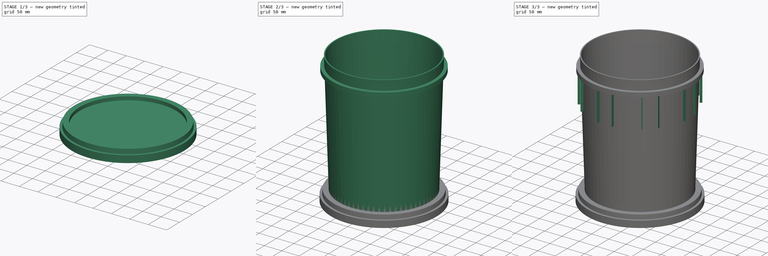
[diagram: build sequence overview — one tinted view per stage of 3, left to right]
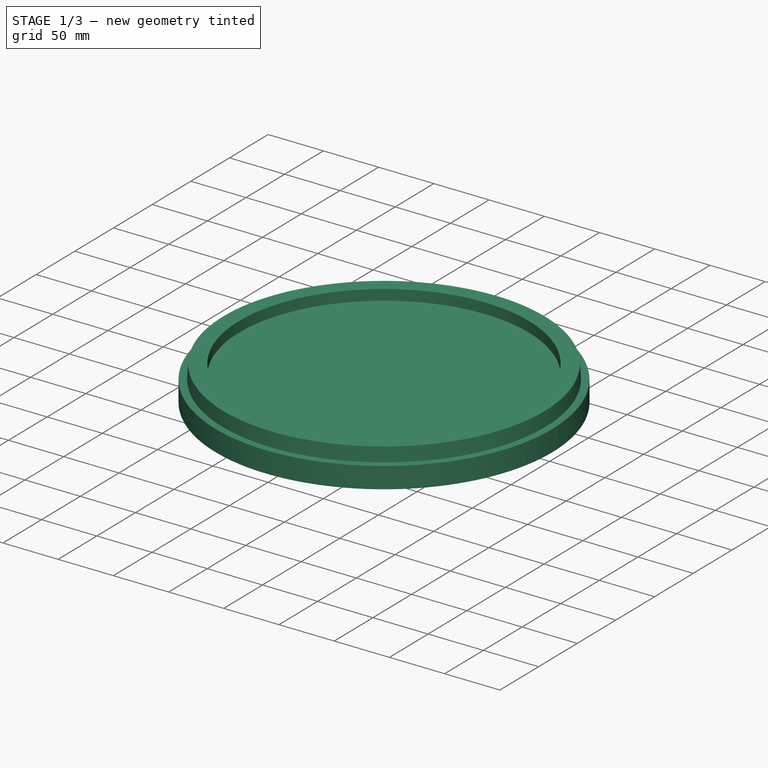
[diagram: stage 1 of 3 — iso view after this stage's code; geometry added in this stage tinted green]
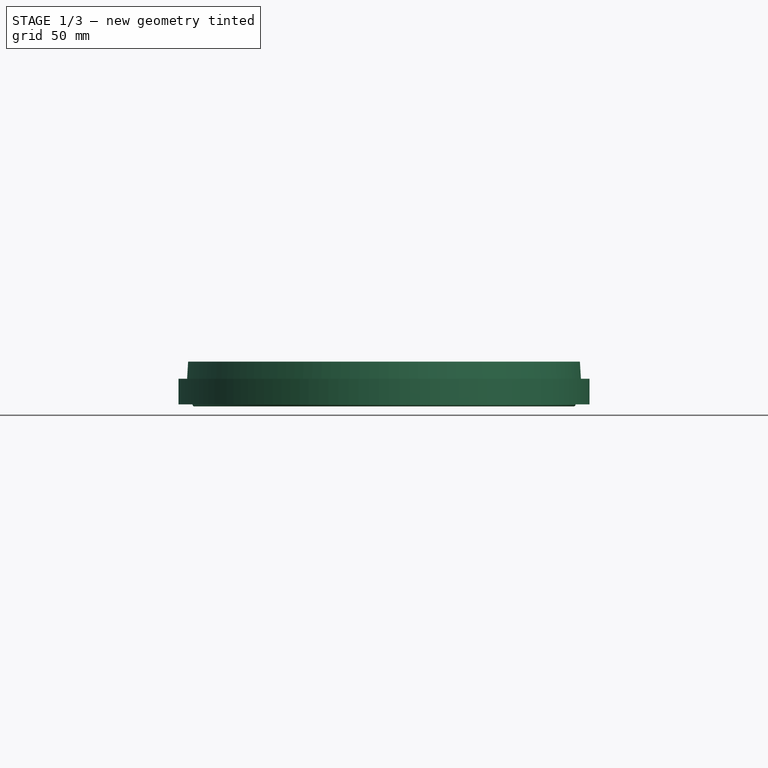
[diagram: stage 1 of 3 — front view after this stage's code; geometry added in this stage tinted green]
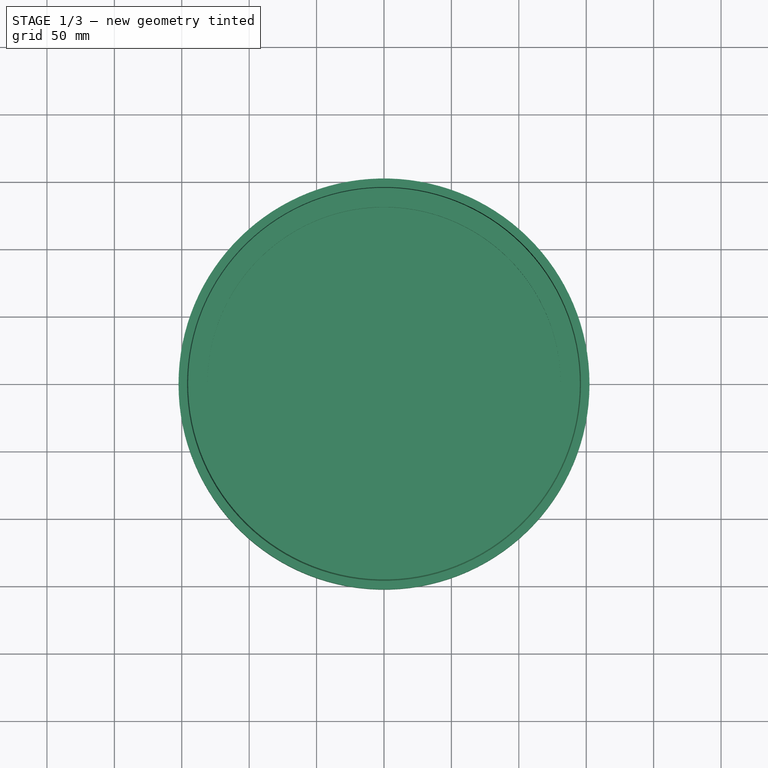
[diagram: stage 1 of 3 — top view after this stage's code; geometry added in this stage tinted green]
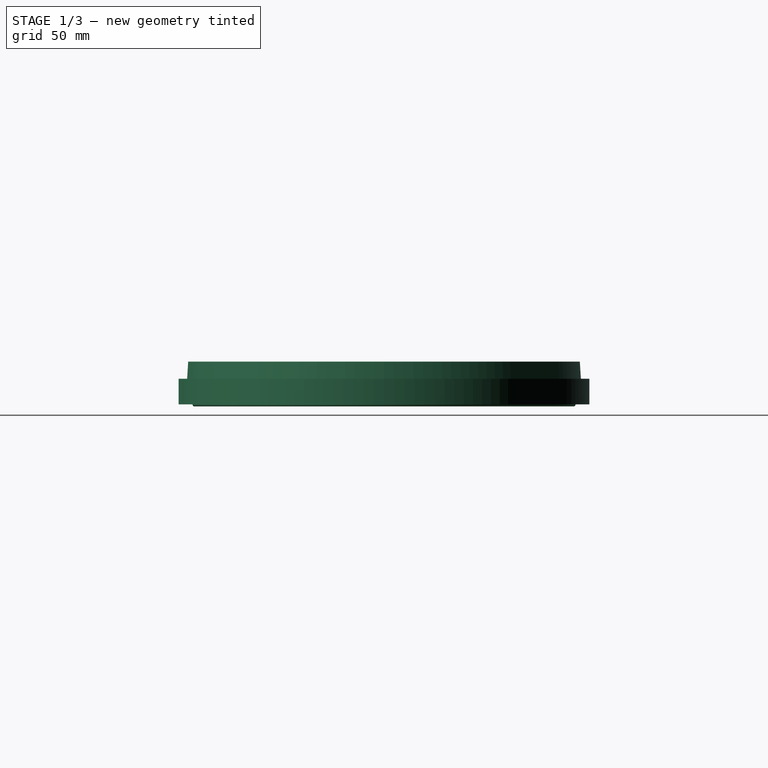
[diagram: stage 1 of 3 — right view after this stage's code; geometry added in this stage tinted green]
FCSTD DOCUMENT  (FreeCAD 0.20RUnknown)
Label: slow-sand-filter
License: All rights reserved
LicenseURL: http://en.wikipedia.org/wiki/All_rights_reserved
objects: Sketcher::SketchObject×4, PartDesign::Revolution×3, PartDesign::Body×3, PartDesign::Pad×1, PartDesign::PolarPattern×1, App::Part×1
note: 16 computed .brp shape members not serialized (recipe doc carries the construction recipe); baked Part::Feature solids carry a one-line shape summary decoded from their .brp

FEATURE [PartDesign::Body] Body001  label="bucket"
  Group = -> [Sketch005,Revolution,Sketch,Pad,PolarPattern]
  Origin = -> Origin002
  Tip = -> PolarPattern
FEATURE [Sketcher::SketchObject] Sketch006
  FullyConstrained = true
  MapMode = 5
  Placement = pos=(0,0,0) rot=(1,0,0;1.5708rad)
  Support = -> [XZ_Plane003]
  sketch-geometry (19):
    g0: LineSegment StartX=-152.4 StartY=0 StartZ=0 EndX=-152.4 EndY=19.05 EndZ=0
    g1: LineSegment StartX=-152.4 StartY=19.05 StartZ=0 EndX=-146.05 EndY=19.05 EndZ=0
    g2: LineSegment StartX=-146.05 StartY=19.05 StartZ=0 EndX=-145.288 EndY=31.75 EndZ=0
    g3: LineSegment StartX=-145.288 StartY=31.75 StartZ=0 EndX=-131.001 EndY=31.75 EndZ=0
    g4: LineSegment StartX=-131.001 StartY=31.75 StartZ=0 EndX=-131.001 EndY=22.225 EndZ=0
    g5: LineSegment StartX=-131.001 StartY=22.225 StartZ=0 EndX=0 EndY=22.225 EndZ=0
    g6: LineSegment StartX=-152.4 StartY=0 StartZ=0 EndX=-149.225 EndY=0 EndZ=0
    g7: LineSegment StartX=-149.225 StartY=0 StartZ=0 EndX=-149.225 EndY=15.875 EndZ=0
    g8: LineSegment StartX=-149.225 StartY=15.875 StartZ=0 EndX=-143.06 EndY=15.875 EndZ=0
    g9: LineSegment StartX=-143.06 StartY=15.875 StartZ=0 EndX=-142.298 EndY=28.575 EndZ=0
    g10: LineSegment StartX=0 StartY=19.05 StartZ=0 EndX=0 EndY=22.225 EndZ=0
    g11: LineSegment StartX=-142.298 StartY=28.575 StartZ=0 EndX=-145.467 EndY=28.7652 EndZ=0
    g12: LineSegment StartX=-134.175 StartY=28.575 StartZ=0 EndX=-134.175 EndY=19.05 EndZ=0
    g13: LineSegment StartX=-134.175 StartY=19.05 StartZ=0 EndX=0 EndY=19.05 EndZ=0
    g14: LineSegment StartX=-142.298 StartY=28.575 StartZ=0 EndX=-138.869 EndY=28.575 EndZ=0
    g15: LineSegment StartX=-138.869 StartY=28.575 StartZ=0 EndX=-138.869 EndY=26.035 EndZ=0
    g16: LineSegment StartX=-138.869 StartY=26.035 StartZ=0 EndX=-135.694 EndY=26.035 EndZ=0
    g17: LineSegment StartX=-135.694 StartY=26.035 StartZ=0 EndX=-135.694 EndY=28.575 EndZ=0
    g18: LineSegment StartX=-135.694 StartY=28.575 StartZ=0 EndX=-134.175 EndY=28.575 EndZ=0
  constraints (57):
    c: PointOnObject(g0,g-1)
    c: Vertical(g0)
    c: DistanceY(g0,g0) = 19.05
    c: DistanceX(g0,g-1) = 152.4
    c: Coincident(g1,g0)
    c: Horizontal(g1)
    c: DistanceX(g1,g1) = 6.35
    c: Coincident(g2,g1)
    c: DistanceY(g1,g2) = 12.7
    c: DistanceX(g2,g-1) = 145.288
    c: Coincident(g3,g2)
    c: Horizontal(g3)
    c: DistanceX(g3,g3) = 14.2875
    c: Coincident(g4,g3)
    c: Vertical(g4)
    c: DistanceY(g4,g4) = 9.525
    c: Coincident(g5,g4)
    c: PointOnObject(g5,g-2)
    c: Horizontal(g5)
    c: Coincident(g6,g0)
    c: PointOnObject(g6,g-1)
    c: Coincident(g7,g6)
    c: Vertical(g7)
    c: Coincident(g8,g7)
    c: Horizontal(g8)
    c: Coincident(g9,g8)
    c: PointOnObject(g10,g-2)
    c: Coincident(g10,g5)
    c: DistanceY(g10,g10) = 3.175
    c: DistanceY(g7,g0) = 3.175
    c: DistanceX(g6,g6) = 3.175
    c: Parallel(g2,g9)
    c: DistanceY(g9,g2) = 3.175
    c: Coincident(g11,g9)
    c: PointOnObject(g11,g2)
    c: Perpendicular(g11,g2)
    c: Distance(g11) = 3.175
    c: Vertical(g12)
    c: Coincident(g13,g12)
    c: Coincident(g13,g10)
    c: Horizontal(g13)
    c: DistanceX(g12,g3) = 3.175
    c: Coincident(g14,g9)
    c: Horizontal(g14)
    c: Coincident(g15,g14)
    c: Vertical(g15)
    c: Coincident(g16,g15)
    c: Horizontal(g16)
    c: Coincident(g17,g16)
    c: Vertical(g17)
    c: Coincident(g18,g17)
    c: Coincident(g18,g12)
    c: Horizontal(g18)
    c: DistanceX(g14,g14) = 3.429
    c: DistanceX(g16,g16) = 3.175
    c: DistanceY(g15,g15) = 2.54
    c: Equal(g15,g17)
FEATURE [PartDesign::Revolution] Revolution001
  Angle = 360
  Axis = (0,2e-16,1)
  Base = (0,0,0)
  Placement = pos=(0,0,0) rot=(1,0,0;1.5708rad)
  Profile = -> Sketch006
  ReferenceAxis = -> Sketch006 [V_Axis]
FEATURE [PartDesign::Body] Body  label="lid"
  Group = -> [Sketch006,Revolution001]
  Origin = -> Origin003
  Placement = pos=(0,0,355.6) rot=(0,0,1;0rad)
  Tip = -> Revolution001
FEATURE [Sketcher::SketchObject] Sketch007
  FullyConstrained = true
  MapMode = 5
  Placement = pos=(0,0,0) rot=(1,0,0;1.5708rad)
  Support = -> [XZ_Plane004]
  sketch-geometry (1):
    g0: Circle CenterX=-140.557 CenterY=0 CenterZ=0 NormalX=0 NormalY=0 NormalZ=1 AngleXU=0 Radius=1.524
  constraints (3):
    c: PointOnObject(g0,g-1)
    c: Diameter(g0) = 3.048
    c: DistanceX(g0,g-1) = 140.557
FEATURE [PartDesign::Revolution] Revolution002
  Angle = 360
  Axis = (0,2e-16,1)
  Base = (0,0,0)
  Placement = pos=(0,0,0) rot=(1,0,0;1.5708rad)
  Profile = -> Sketch007
  ReferenceAxis = -> Sketch007 [V_Axis]
FEATURE [PartDesign::Body] Body002  label="oring"
  Group = -> [Sketch007,Revolution002]
  Origin = -> Origin004
  Placement = pos=(0,0,382.524) rot=(0,0,1;0rad)
  Tip = -> Revolution002
FEATURE [App::Part] Part  label="pail-5-gal"
  Group = -> [Body001,Body,Body002]
  Origin = -> Origin
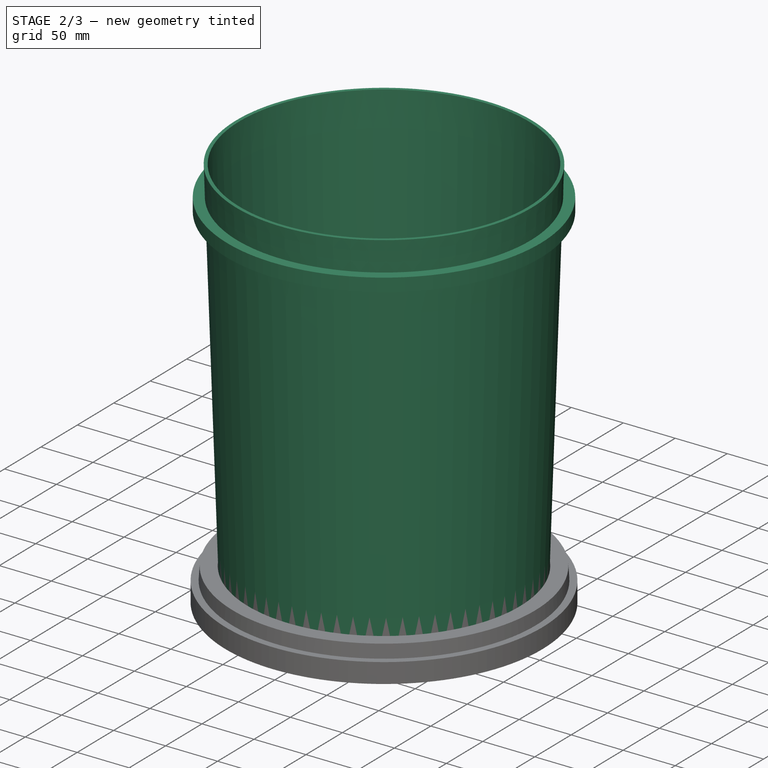
[diagram: stage 2 of 3 — iso view after this stage's code; geometry added in this stage tinted green]
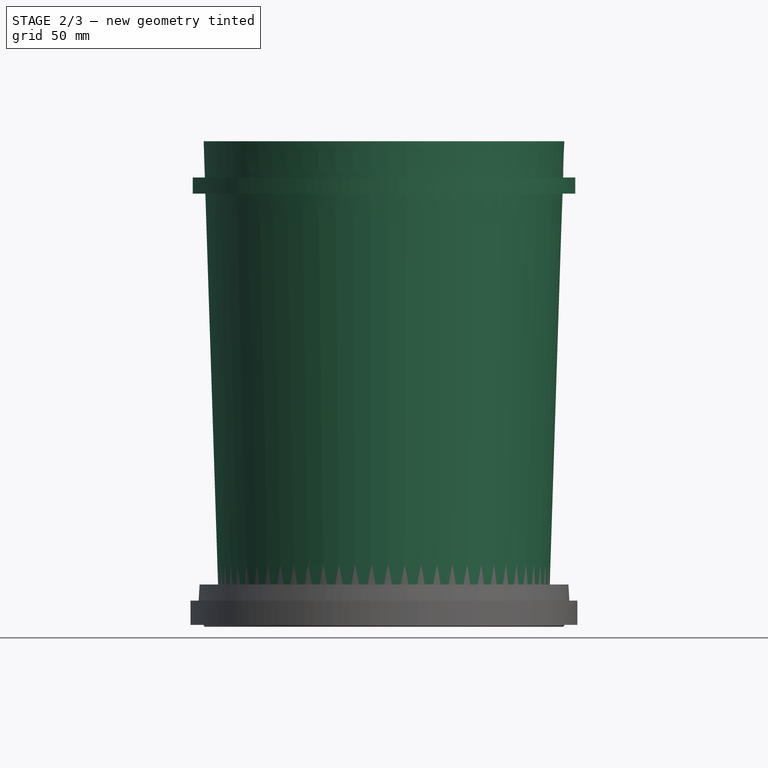
[diagram: stage 2 of 3 — front view after this stage's code; geometry added in this stage tinted green]
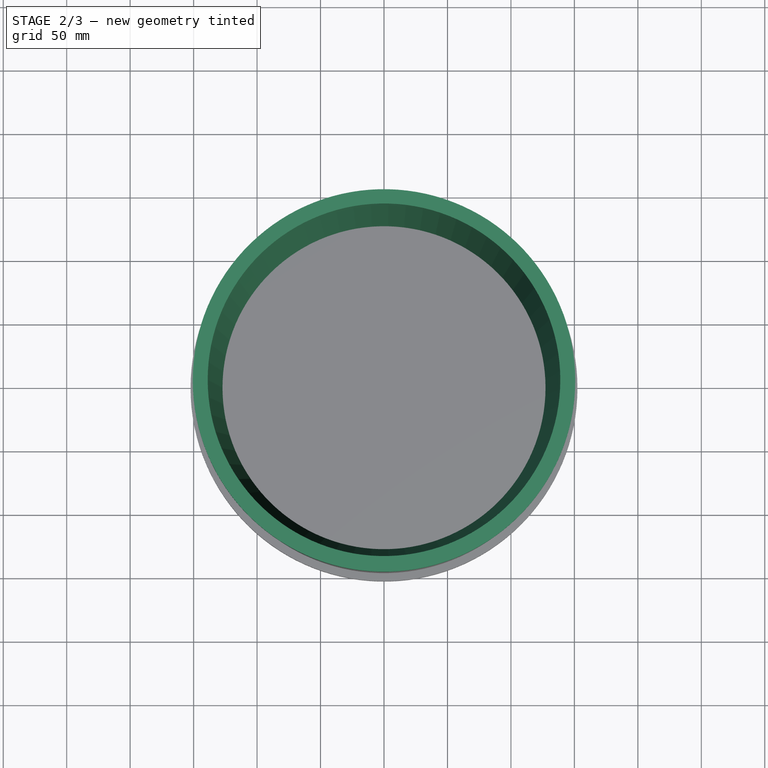
[diagram: stage 2 of 3 — top view after this stage's code; geometry added in this stage tinted green]
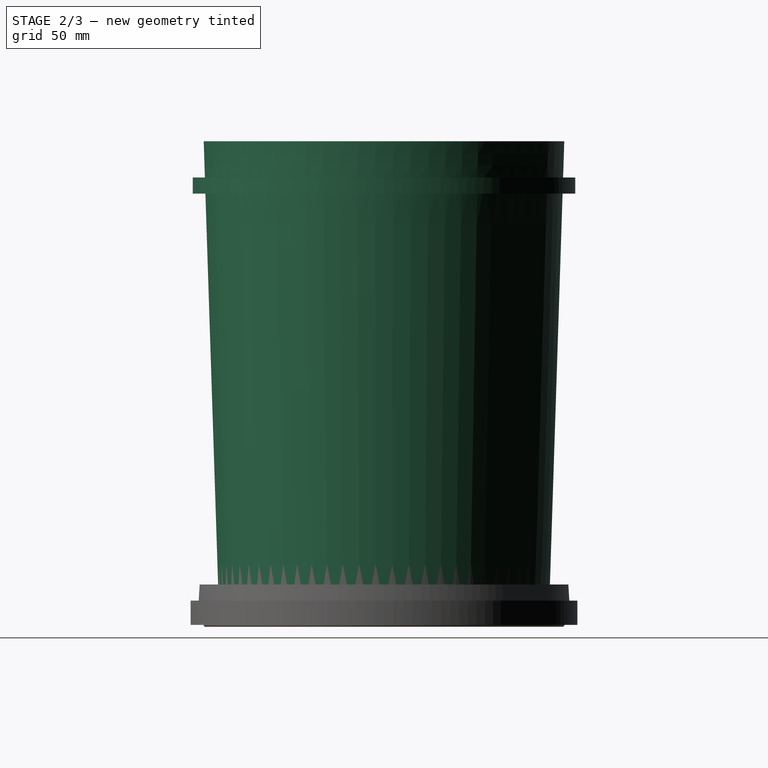
[diagram: stage 2 of 3 — right view after this stage's code; geometry added in this stage tinted green]
FEATURE [Sketcher::SketchObject] Sketch005
  FullyConstrained = true
  MapMode = 5
  Placement = pos=(0,0,0) rot=(1,0,0;1.5708rad)
  Support = -> [XZ_Plane002]
  sketch-geometry (26):
    g0: LineSegment StartX=-128.588 StartY=0 StartZ=0 EndX=-128.588 EndY=12.7 EndZ=0
    g1: LineSegment StartX=-128.588 StartY=12.7 StartZ=0 EndX=-130.175 EndY=14.2875 EndZ=0
    g2: LineSegment StartX=-130.175 StartY=14.2875 StartZ=0 EndX=-141.051 EndY=349.265 EndZ=0
    g3: LineSegment StartX=-141.051 StartY=349.265 StartZ=0 EndX=-147.504 EndY=349.265 EndZ=0
    g4: LineSegment StartX=-147.504 StartY=349.265 StartZ=0 EndX=-147.504 EndY=339.74 EndZ=0
    g5: LineSegment StartX=-147.504 StartY=339.74 StartZ=0 EndX=-150.679 EndY=339.74 EndZ=0
    g6: LineSegment StartX=-150.679 StartY=339.74 StartZ=0 EndX=-150.679 EndY=352.44 EndZ=0
    g7: LineSegment StartX=-150.679 StartY=352.44 StartZ=0 EndX=-141.154 EndY=352.44 EndZ=0
    g8: LineSegment StartX=-141.154 StartY=352.44 StartZ=0 EndX=-142.081 EndY=381 EndZ=0
    g9: LineSegment StartX=-142.081 StartY=381 StartZ=0 EndX=-138.905 EndY=381 EndZ=0
    g10: LineSegment StartX=-138.905 StartY=381 StartZ=0 EndX=-127.05 EndY=15.875 EndZ=0
    g11: LineSegment StartX=-127.05 StartY=15.875 StartZ=0 EndX=0 EndY=15.875 EndZ=0
    g12: LineSegment StartX=0 StartY=15.875 StartZ=0 EndX=0 EndY=12.7 EndZ=0
    g13: LineSegment StartX=-125.412 StartY=12.7 StartZ=0 EndX=-125.412 EndY=0 EndZ=0
    g14: LineSegment StartX=-125.412 StartY=0 StartZ=0 EndX=-128.588 EndY=0 EndZ=0
    g15: LineSegment StartX=-141.154 StartY=352.44 StartZ=0 EndX=-137.981 EndY=352.543 EndZ=0
    g16: LineSegment StartX=-141.051 StartY=349.265 StartZ=0 EndX=-137.878 EndY=349.368 EndZ=0
    g17: LineSegment StartX=0 StartY=12.7 StartZ=0 EndX=-9.525 EndY=12.7 EndZ=0
    g18: LineSegment StartX=-9.525 StartY=12.7 StartZ=0 EndX=-9.525 EndY=6.985 EndZ=0
    g19: LineSegment StartX=-9.525 StartY=6.985 StartZ=0 EndX=-12.7 EndY=6.985 EndZ=0
    g20: LineSegment StartX=-12.7 StartY=6.985 StartZ=0 EndX=-12.7 EndY=12.7 EndZ=0
    g21: LineSegment StartX=-12.7 StartY=12.7 StartZ=0 EndX=-34.925 EndY=12.7 EndZ=0
    g22: LineSegment StartX=-34.925 StartY=12.7 StartZ=0 EndX=-34.925 EndY=6.985 EndZ=0
    g23: LineSegment StartX=-34.925 StartY=6.985 StartZ=0 EndX=-38.1 EndY=6.985 EndZ=0
    g24: LineSegment StartX=-38.1 StartY=6.985 StartZ=0 EndX=-38.1 EndY=12.7 EndZ=0
    g25: LineSegment StartX=-38.1 StartY=12.7 StartZ=0 EndX=-125.412 EndY=12.7 EndZ=0
  constraints (78):
    c: PointOnObject(g0,g-1)
    c: Vertical(g0)
    c: Coincident(g1,g0)
    c: Coincident(g2,g1)
    c: Coincident(g3,g2)
    c: Horizontal(g3)
    c: Coincident(g4,g3)
    c: Vertical(g4)
    c: Coincident(g5,g4)
    c: Horizontal(g5)
    c: Coincident(g6,g5)
    c: Vertical(g6)
    c: Coincident(g7,g6)
    c: Horizontal(g7)
    c: Coincident(g8,g7)
    c: Coincident(g9,g8)
    c: Horizontal(g9)
    c: Coincident(g10,g9)
    c: Coincident(g11,g10)
    c: PointOnObject(g11,g-2)
    c: Horizontal(g11)
    c: Coincident(g12,g11)
    c: PointOnObject(g12,g-2)
    c: PointOnObject(g13,g-1)
    c: Coincident(g14,g13)
    c: Coincident(g14,g0)
    c: DistanceX(g14,g14) = 3.175
    c: DistanceY(g0,g8) = 381
    c: Coincident(g15,g7)
    c: PointOnObject(g15,g10)
    c: Coincident(g16,g2)
    c: PointOnObject(g16,g10)
    c: Parallel(g15,g16)
    c: Perpendicular(g8,g15)
    c: Perpendicular(g2,g16)
    c: Equal(g16,g15)
    c: Distance(g16) = 3.175
    c: Vertical(g13)
    c: DistanceY(g13,g10) = 3.175
    c: DistanceX(g8,g-1) = 142.081
    c: DistanceX(g1,g-1) = 130.175
    c: Parallel(g10,g2)
    c: DistanceX(g0,g-1) = 128.588
    c: Angle(g1,g0) = 2.35619
    c: DistanceY(g0,g0) = 12.7
    c: Equal(g13,g0)
    c: Distance(g8) = 28.575
    c: DistanceY(g2,g7) = 3.175
    c: DistanceX(g7,g7) = 9.525
    c: DistanceY(g6,g6) = 12.7
    c: DistanceX(g5,g5) = 3.175
    c: Coincident(g17,g12)
    c: Horizontal(g17)
    c: Coincident(g18,g17)
    c: Vertical(g18)
    c: Coincident(g19,g18)
    c: Horizontal(g19)
    c: Coincident(g20,g19)
    c: Vertical(g20)
    c: Coincident(g21,g20)
    c: Horizontal(g21)
    c: Coincident(g22,g21)
    c: Coincident(g23,g22)
    c: Horizontal(g23)
    c: Coincident(g24,g23)
    c: Vertical(g24)
    c: Coincident(g25,g24)
    c: Coincident(g25,g13)
    c: Horizontal(g25)
    c: DistanceY(g17,g11) = 3.175
    c: DistanceY(g20,g11) = 3.175
    c: Vertical(g22)
    c: Equal(g19,g23)
    c: Equal(g23,g14)
    c: Equal(g22,g20)
    c: DistanceY(g22,g22) = 5.715
    c: DistanceX(g19,g-1) = 12.7
    c: DistanceX(g23,g-1) = 38.1
FEATURE [PartDesign::Revolution] Revolution
  Angle = 360
  Axis = (0,2e-16,1)
  Base = (0,0,0)
  Placement = pos=(0,0,0) rot=(1,0,0;1.5708rad)
  Profile = -> Sketch005
  ReferenceAxis = -> Sketch005 [V_Axis]
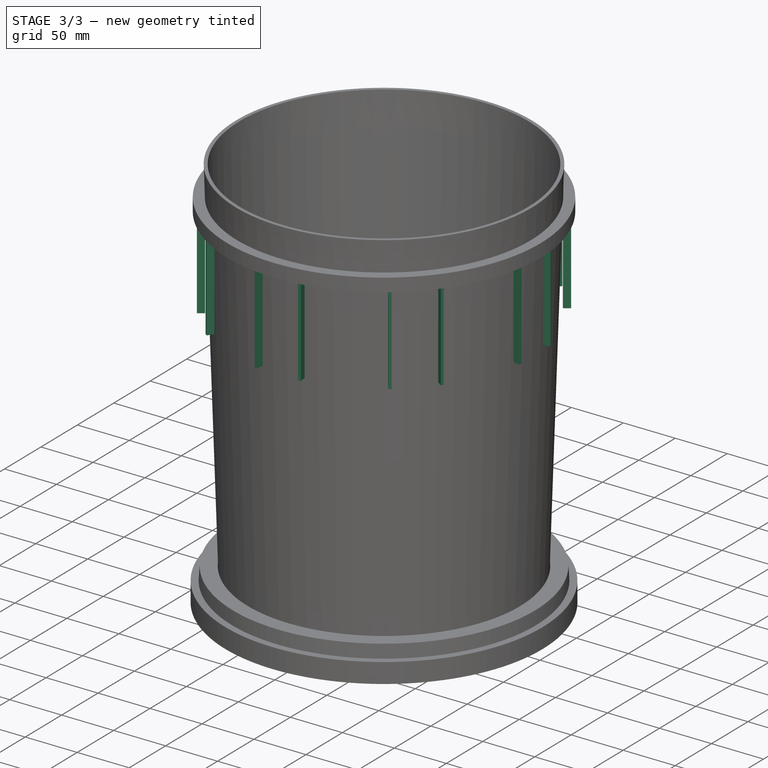
[diagram: stage 3 of 3 — iso view after this stage's code; geometry added in this stage tinted green]
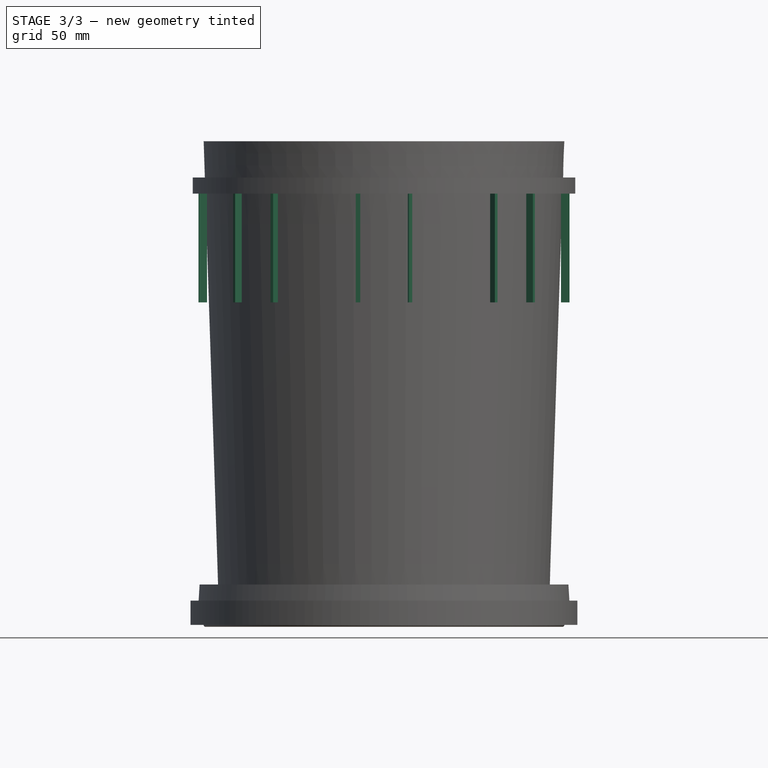
[diagram: stage 3 of 3 — front view after this stage's code; geometry added in this stage tinted green]
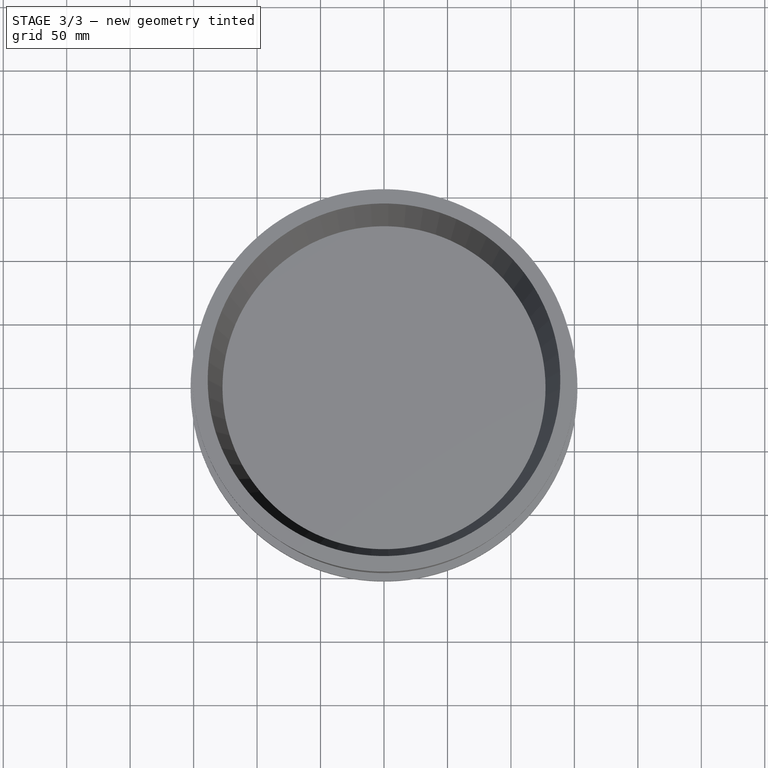
[diagram: stage 3 of 3 — top view after this stage's code; geometry added in this stage tinted green]
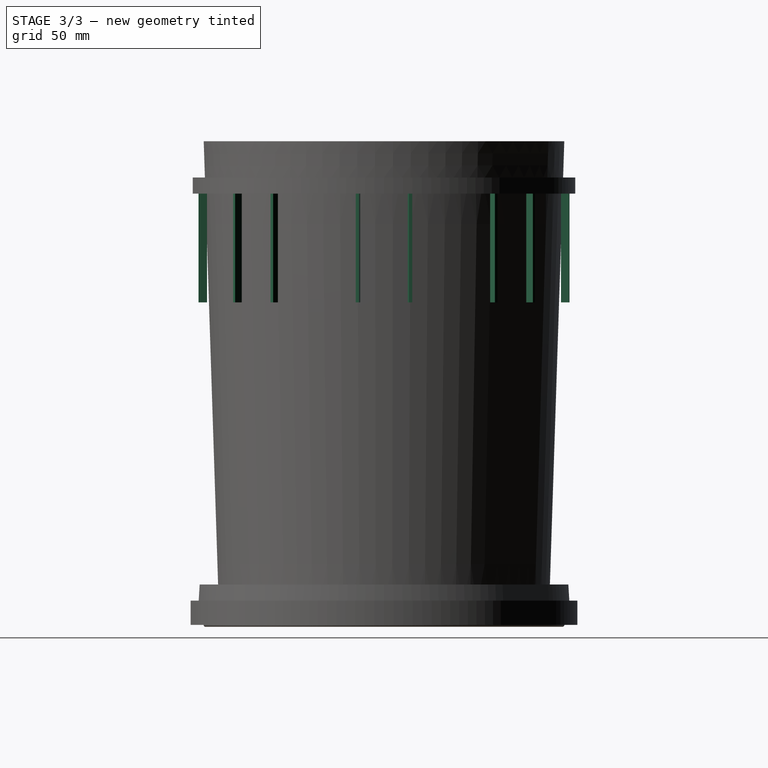
[diagram: stage 3 of 3 — right view after this stage's code; geometry added in this stage tinted green]
FEATURE [Sketcher::SketchObject] Sketch
  ExternalGeometry = -> [Revolution]
  FullyConstrained = true
  MapMode = 5
  Placement = pos=(0,1.537e-13,349.265) rot=(1,0,0;3.14159rad)
  Support = -> [Revolution]
  sketch-geometry (12):
    g0: LineSegment StartX=0 StartY=0 StartZ=0 EndX=-22.225 EndY=145.82 EndZ=0
    g1: LineSegment StartX=0 StartY=0 StartZ=0 EndX=22.225 EndY=145.82 EndZ=0
    g2: LineSegment StartX=-22.225 StartY=145.82 StartZ=0 EndX=-3.91e-14 EndY=145.82 EndZ=0
    g3: LineSegment StartX=-3.91e-14 StartY=145.82 StartZ=0 EndX=22.225 EndY=145.82 EndZ=0
    g4: ArcOfCircle CenterX=0 CenterY=0 CenterZ=0 NormalX=0 NormalY=0 NormalZ=1 AngleXU=0 Radius=147.504 StartAngle=1.70465 EndAngle=1.72205
    g5: ArcOfCircle CenterX=0 CenterY=0 CenterZ=0 NormalX=0 NormalY=0 NormalZ=1 AngleXU=0 Radius=141.051 StartAngle=1.70385 EndAngle=1.72205
    g6: LineSegment StartX=-19.6852 StartY=146.185 StartZ=0 EndX=-18.7127 EndY=139.804 EndZ=0
    g7: LineSegment StartX=-21.2527 StartY=139.441 StartZ=0 EndX=-22.225 EndY=145.82 EndZ=0
    g8: ArcOfCircle CenterX=0 CenterY=0 CenterZ=0 NormalX=0 NormalY=0 NormalZ=1 AngleXU=0 Radius=147.504 StartAngle=1.41955 EndAngle=1.43694
    g9: ArcOfCircle CenterX=0 CenterY=0 CenterZ=0 NormalX=0 NormalY=0 NormalZ=1 AngleXU=0 Radius=141.051 StartAngle=1.41955 EndAngle=1.43774
    g10: LineSegment StartX=19.6852 StartY=146.185 StartZ=0 EndX=18.7127 EndY=139.804 EndZ=0
    g11: LineSegment StartX=22.225 StartY=145.82 StartZ=0 EndX=21.2527 EndY=139.441 EndZ=0
  constraints (34):
    c: Coincident(g0,g-1)
    c: Coincident(g1,g0)
    c: PointOnObject(g1,g-3)
    c: PointOnObject(g0,g-3)
    c: DistanceX(g0,g1) = 44.45
    c: Coincident(g2,g0)
    c: Horizontal(g2)
    c: Coincident(g3,g2)
    c: Coincident(g3,g1)
    c: Horizontal(g3)
    c: Equal(g2,g3)
    c: Coincident(g4,g0)
    c: Coincident(g4,g0)
    c: Coincident(g5,g4)
    c: PointOnObject(g5,g0)
    c: PointOnObject(g5,g-4)
    c: Coincident(g6,g4)
    c: Coincident(g6,g5)
    c: Coincident(g7,g5)
    c: Coincident(g7,g4)
    c: Parallel(g7,g6)
    c: Coincident(g8,g4)
    c: PointOnObject(g8,g-3)
    c: Coincident(g9,g4)
    c: PointOnObject(g9,g-4)
    c: PointOnObject(g9,g1)
    c: Coincident(g10,g8)
    c: Coincident(g10,g9)
    c: Coincident(g11,g8)
    c: Coincident(g11,g9)
    c: Parallel(g11,g10)
    c: PointOnObject(g8,g1)
    c: DistanceX(g5,g5) = 2.54
    c: DistanceX(g9,g9) = 2.54
FEATURE [PartDesign::Pad] Pad
  BaseFeature = -> Revolution
  Direction = (0,-2e-16,-1)
  Length = 95.25
  Length2 = 10
  Placement = pos=(0,0,0) rot=(1,0,0;1.5708rad)
  Profile = -> Sketch
  ReferenceAxis = -> Sketch [N_Axis]
  Type = 0
FEATURE [PartDesign::PolarPattern] PolarPattern
  Angle = 360
  Axis = -> Sketch [N_Axis]
  BaseFeature = -> Pad
  Occurrences = 8
  Originals = -> [Pad]
  Placement = pos=(0,0,0) rot=(1,0,0;1.5708rad)
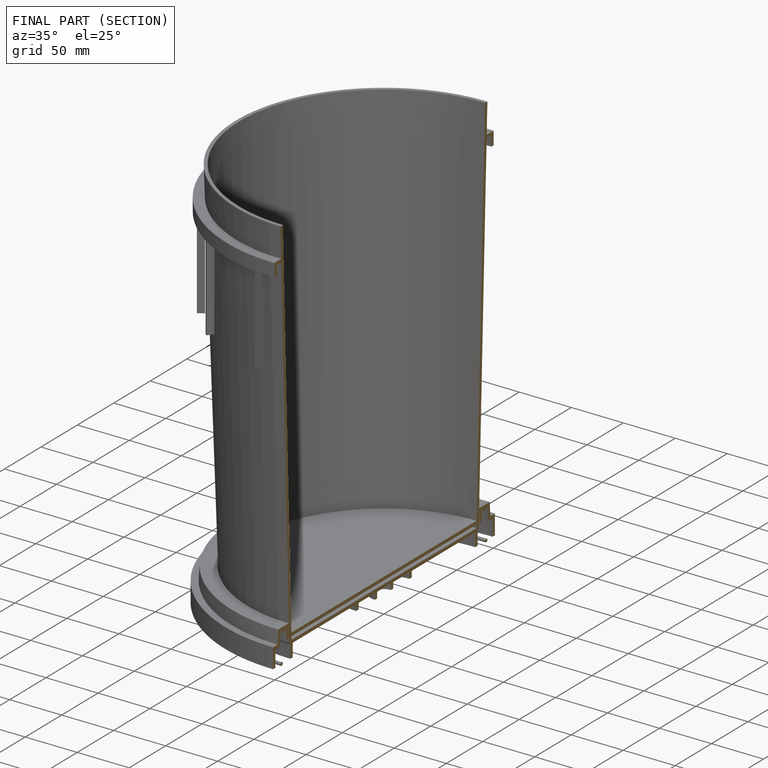
[diagram: finished part — half-section view (interior)]
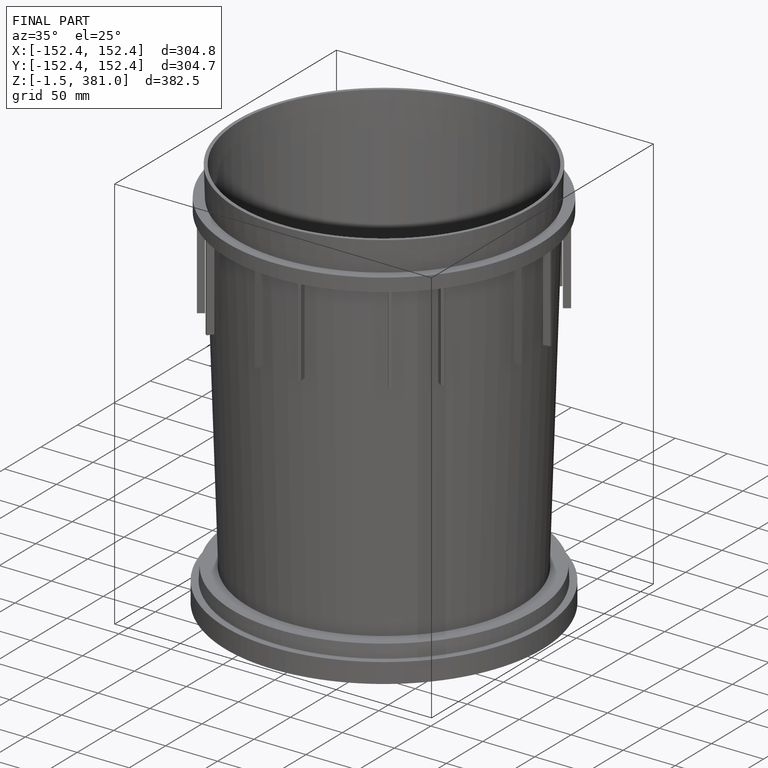
[diagram: finished part — iso view with bounding-box wireframe]
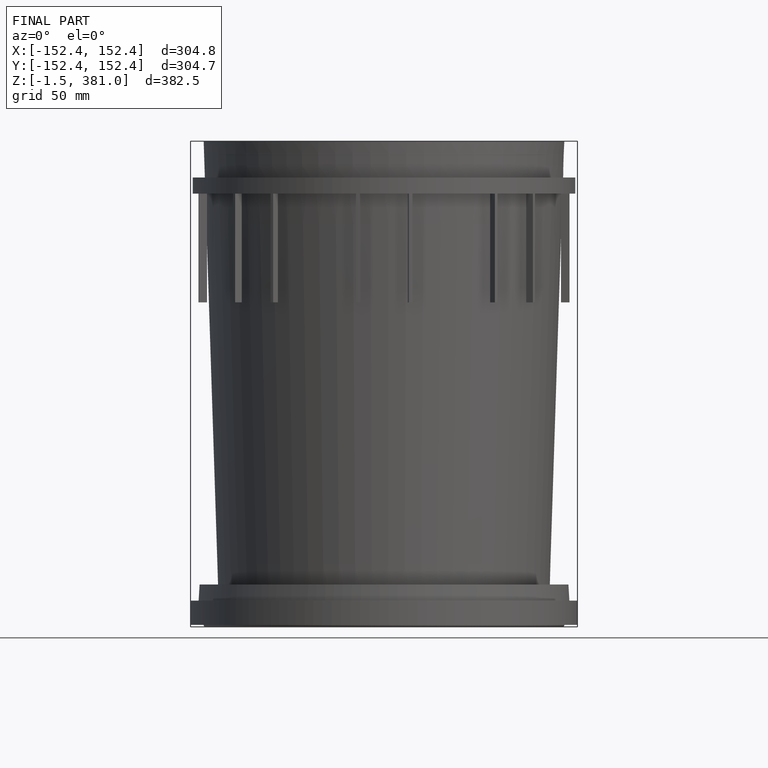
[diagram: finished part — front view with bounding-box wireframe]
